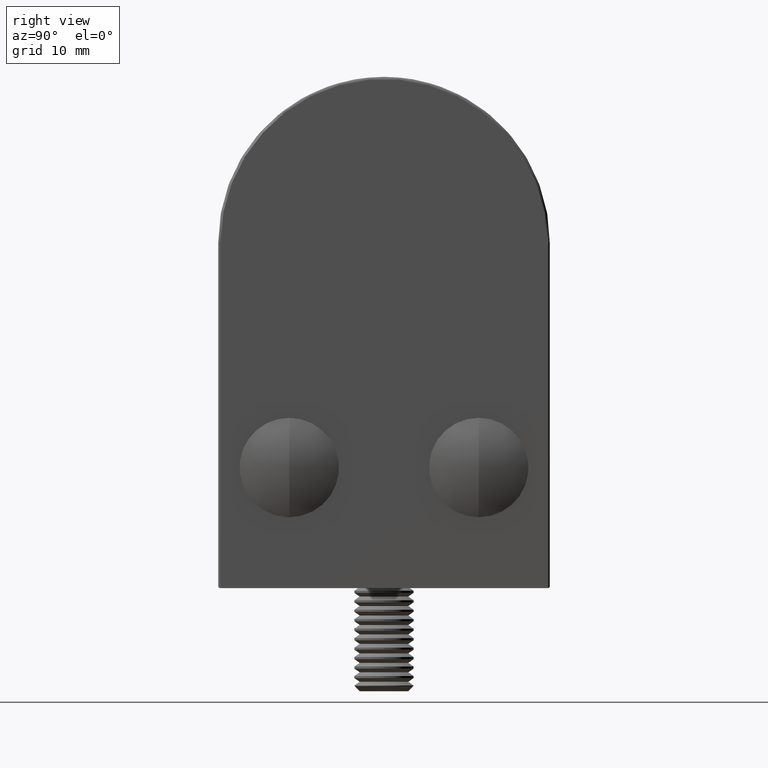
[diagram: clean part render]
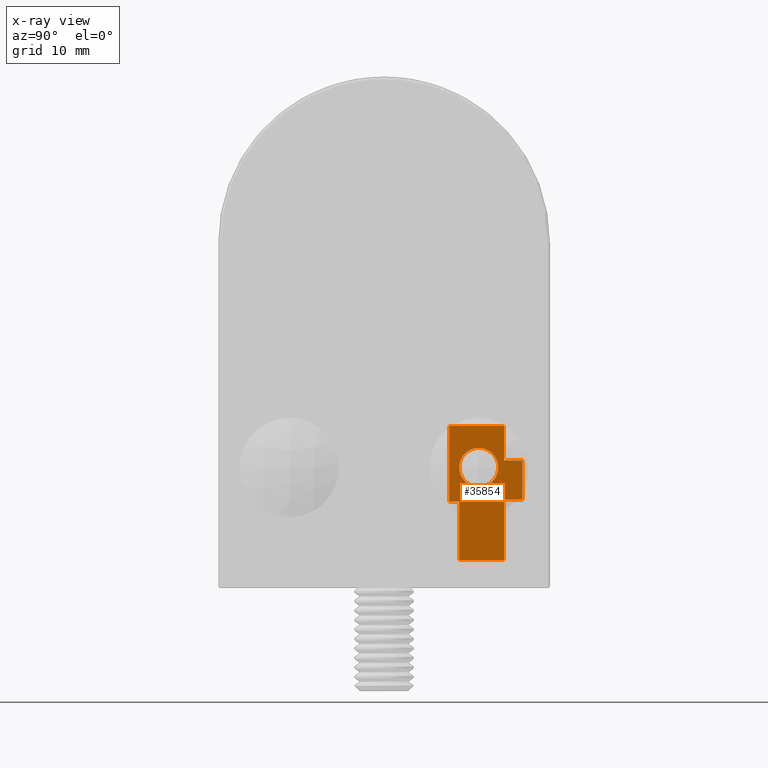
[diagram: x-ray — body ghosted, one internal face saturated and labeled with its STEP entity id]
A machine part, right view, then the same camera in x-ray: the body is ghosted and one INTERNAL B-rep face — a face not visible from any outside direction — is saturated and labeled: STEP entity #35854.
In plain terms, the highlighted planar face has unit normal (1, 0, 0).
Its self-contained STEP definition (entity closure, byte-faithful):
#1365 = VERTEX_POINT ( 'NONE', #38196 ) ;
#2745 = CARTESIAN_POINT ( 'NONE',  ( 13.29999999999999900, -13.99999999999999500, -0.8110720391324346400 ) ) ;
#4311 = CARTESIAN_POINT ( 'NONE',  ( 13.29999999999999900, 8.000000000000000000, 5.349999999999998800 ) ) ;
#4408 = ORIENTED_EDGE ( 'NONE', *, *, #43720, .F. ) ;
#4427 = EDGE_CURVE ( 'NONE', #53564, #48731, #50680, .T. ) ;
#4525 = DIRECTION ( 'NONE',  ( -0.0000000000000000000, -0.0000000000000000000, 1.000000000000000000 ) ) ;
#5306 = VERTEX_POINT ( 'NONE', #37982 ) ;
#5380 = ORIENTED_EDGE ( 'NONE', *, *, #27023, .T. ) ;
#5489 = ORIENTED_EDGE ( 'NONE', *, *, #41981, .T. ) ;
#5535 = CARTESIAN_POINT ( 'NONE',  ( 13.29999999999999900, 11.70000000000000300, 4.299999999999996300 ) ) ;
#6249 = DIRECTION ( 'NONE',  ( 0.0000000000000000000, 0.0000000000000000000, -1.000000000000000000 ) ) ;
#6376 = ORIENTED_EDGE ( 'NONE', *, *, #39985, .T. ) ;
#6615 = VERTEX_POINT ( 'NONE', #27983 ) ;
#6991 = DIRECTION ( 'NONE',  ( -0.0000000000000000000, -0.0000000000000000000, 1.000000000000000000 ) ) ;
#7411 = EDGE_LOOP ( 'NONE', ( #37344, #12944, #14843, #5489, #5380, #19915, #38906, #42386, #58615, #6376, #40244 ) ) ;
#8554 = DIRECTION ( 'NONE',  ( 0.0000000000000000000, -1.000000000000000000, 0.0000000000000000000 ) ) ;
#9765 = DIRECTION ( 'NONE',  ( 0.0000000000000000000, 0.0000000000000000000, -1.000000000000000000 ) ) ;
#10319 = LINE ( 'NONE', #21889, #54164 ) ;
#10358 = DIRECTION ( 'NONE',  ( 1.000000000000000000, -0.0000000000000000000, -0.0000000000000000000 ) ) ;
#11207 = LINE ( 'NONE', #42343, #38024 ) ;
#11582 = DIRECTION ( 'NONE',  ( 0.0000000000000000000, -1.000000000000000000, 0.0000000000000000000 ) ) ;
#11608 = VECTOR ( 'NONE', #6991, 1000.000000000000000 ) ;
#12147 = EDGE_CURVE ( 'NONE', #5306, #20780, #57287, .T. ) ;
#12753 = CARTESIAN_POINT ( 'NONE',  ( 13.29999999999999900, 10.14999999999999900, 7.599999999999997000 ) ) ;
#12944 = ORIENTED_EDGE ( 'NONE', *, *, #27893, .T. ) ;
#13829 = EDGE_CURVE ( 'NONE', #48031, #39667, #42231, .T. ) ;
#14113 = AXIS2_PLACEMENT_3D ( 'NONE', #55992, #10358, #50865 ) ;
#14166 = DIRECTION ( 'NONE',  ( 1.000000000000000000, -0.0000000000000000000, 0.0000000000000000000 ) ) ;
#14305 = CARTESIAN_POINT ( 'NONE',  ( 13.29999999999999900, 11.70000000000000300, 4.299999999999996300 ) ) ;
#14440 = VERTEX_POINT ( 'NONE', #48359 ) ;
#14543 = DIRECTION ( 'NONE',  ( 0.0000000000000000000, 0.0000000000000000000, -1.000000000000000000 ) ) ;
#14843 = ORIENTED_EDGE ( 'NONE', *, *, #4427, .T. ) ;
#17055 = CARTESIAN_POINT ( 'NONE',  ( 13.29999999999999900, 6.349999999999997900, 1.599999999999995400 ) ) ;
#17610 = VERTEX_POINT ( 'NONE', #23561 ) ;
#17677 = CARTESIAN_POINT ( 'NONE',  ( 13.29999999999999900, 6.349999999999997900, 4.099999999999993400 ) ) ;
#19822 = LINE ( 'NONE', #46881, #21943 ) ;
#19915 = ORIENTED_EDGE ( 'NONE', *, *, #12147, .T. ) ;
#20190 = CARTESIAN_POINT ( 'NONE',  ( 13.29999999999999900, 10.14999999999999900, -0.8110720391324346400 ) ) ;
#20391 = CARTESIAN_POINT ( 'NONE',  ( 13.29999999999999900, 10.14999999999999900, 10.49999999999999600 ) ) ;
#20780 = VERTEX_POINT ( 'NONE', #20391 ) ;
#21889 = CARTESIAN_POINT ( 'NONE',  ( 13.29999999999999900, 11.70000000000000300, 7.599999999999997000 ) ) ;
#21943 = VECTOR ( 'NONE', #33838, 1000.000000000000000 ) ;
#23561 = CARTESIAN_POINT ( 'NONE',  ( 13.29999999999999900, 5.499999999999999100, 10.49999999999999600 ) ) ;
#23801 = VECTOR ( 'NONE', #30529, 1000.000000000000000 ) ;
#24623 = VECTOR ( 'NONE', #8554, 1000.000000000000000 ) ;
#24874 = AXIS2_PLACEMENT_3D ( 'NONE', #49738, #14166, #14543 ) ;
#25507 = ORIENTED_EDGE ( 'NONE', *, *, #13829, .F. ) ;
#25708 = CIRCLE ( 'NONE', #14113, 1.649999999999998600 ) ;
#26127 = LINE ( 'NONE', #26871, #24623 ) ;
#26871 = CARTESIAN_POINT ( 'NONE',  ( 13.29999999999999900, 10.14999999999999900, 10.49999999999999600 ) ) ;
#27023 = EDGE_CURVE ( 'NONE', #1365, #5306, #36783, .T. ) ;
#27048 = DIRECTION ( 'NONE',  ( -0.0000000000000000000, -0.0000000000000000000, 1.000000000000000000 ) ) ;
#27354 = EDGE_LOOP ( 'NONE', ( #4408, #25507 ) ) ;
#27889 = DIRECTION ( 'NONE',  ( 1.000000000000000000, -0.0000000000000000000, -0.0000000000000000000 ) ) ;
#27893 = EDGE_CURVE ( 'NONE', #46000, #53564, #52631, .T. ) ;
#27983 = CARTESIAN_POINT ( 'NONE',  ( 13.29999999999999900, 6.349999999999997900, 4.099999999999993400 ) ) ;
#28049 = VERTEX_POINT ( 'NONE', #17055 ) ;
#28765 = VECTOR ( 'NONE', #35650, 1000.000000000000000 ) ;
#29292 = CARTESIAN_POINT ( 'NONE',  ( 13.29999999999999900, 10.14999999999999900, 4.299999999999996300 ) ) ;
#30529 = DIRECTION ( 'NONE',  ( 0.0000000000000000000, 2.538619720941671800E-015, -1.000000000000000000 ) ) ;
#31903 = DIRECTION ( 'NONE',  ( -0.0000000000000000000, 1.000000000000000000, -0.0000000000000000000 ) ) ;
#32268 = CARTESIAN_POINT ( 'NONE',  ( 13.29999999999999900, 8.000000000000000000, 6.999999999999997300 ) ) ;
#33001 = LINE ( 'NONE', #2745, #52821 ) ;
#33266 = FACE_BOUND ( 'NONE', #27354, .T. ) ;
#33382 = EDGE_CURVE ( 'NONE', #46000, #42260, #33001, .T. ) ;
#33838 = DIRECTION ( 'NONE',  ( 0.0000000000000000000, 1.000000000000000000, -4.081702296416020700E-015 ) ) ;
#35050 = VECTOR ( 'NONE', #31903, 1000.000000000000000 ) ;
#35608 = EDGE_CURVE ( 'NONE', #14440, #6615, #19822, .T. ) ;
#35650 = DIRECTION ( 'NONE',  ( 0.0000000000000000000, 2.538619720941671800E-015, -1.000000000000000000 ) ) ;
#35854 = ADVANCED_FACE ( 'NONE', ( #45289, #33266 ), #57859, .T. ) ;
#36783 = LINE ( 'NONE', #12753, #45971 ) ;
#36817 = AXIS2_PLACEMENT_3D ( 'NONE', #32268, #27889, #9765 ) ;
#37344 = ORIENTED_EDGE ( 'NONE', *, *, #33382, .F. ) ;
#37982 = CARTESIAN_POINT ( 'NONE',  ( 13.29999999999999900, 10.14999999999999900, 7.599999999999997000 ) ) ;
#38024 = VECTOR ( 'NONE', #6249, 1000.000000000000000 ) ;
#38196 = CARTESIAN_POINT ( 'NONE',  ( 13.29999999999999900, 11.70000000000000300, 7.599999999999997000 ) ) ;
#38479 = EDGE_CURVE ( 'NONE', #17610, #14440, #11207, .T. ) ;
#38906 = ORIENTED_EDGE ( 'NONE', *, *, #48596, .T. ) ;
#39667 = VERTEX_POINT ( 'NONE', #4311 ) ;
#39784 = DIRECTION ( 'NONE',  ( -0.0000000000000000000, -1.000000000000000000, -0.0000000000000000000 ) ) ;
#39985 = EDGE_CURVE ( 'NONE', #6615, #28049, #55030, .T. ) ;
#40244 = ORIENTED_EDGE ( 'NONE', *, *, #51199, .T. ) ;
#41981 = EDGE_CURVE ( 'NONE', #48731, #1365, #10319, .T. ) ;
#42231 = CIRCLE ( 'NONE', #36817, 1.649999999999998600 ) ;
#42260 = VERTEX_POINT ( 'NONE', #46145 ) ;
#42343 = CARTESIAN_POINT ( 'NONE',  ( 13.29999999999999900, 5.499999999999999100, 10.49999999999999600 ) ) ;
#42386 = ORIENTED_EDGE ( 'NONE', *, *, #38479, .T. ) ;
#43720 = EDGE_CURVE ( 'NONE', #39667, #48031, #25708, .T. ) ;
#45025 = CARTESIAN_POINT ( 'NONE',  ( 13.29999999999999900, 10.14999999999999900, 10.49999999999999600 ) ) ;
#45289 = FACE_OUTER_BOUND ( 'NONE', #7411, .T. ) ;
#45971 = VECTOR ( 'NONE', #39784, 1000.000000000000000 ) ;
#46000 = VERTEX_POINT ( 'NONE', #20190 ) ;
#46145 = CARTESIAN_POINT ( 'NONE',  ( 13.29999999999999900, 6.350000000000011200, -0.8110720391324346400 ) ) ;
#46881 = CARTESIAN_POINT ( 'NONE',  ( 13.29999999999999900, 5.499999999999999100, 4.099999999999997000 ) ) ;
#48031 = VERTEX_POINT ( 'NONE', #53460 ) ;
#48359 = CARTESIAN_POINT ( 'NONE',  ( 13.29999999999999900, 5.499999999999998200, 4.099999999999993400 ) ) ;
#48596 = EDGE_CURVE ( 'NONE', #20780, #17610, #26127, .T. ) ;
#48731 = VERTEX_POINT ( 'NONE', #5535 ) ;
#48737 = VECTOR ( 'NONE', #27048, 1000.000000000000000 ) ;
#49306 = LINE ( 'NONE', #53069, #23801 ) ;
#49738 = CARTESIAN_POINT ( 'NONE',  ( 13.29999999999999900, 0.0000000000000000000, 0.0000000000000000000 ) ) ;
#50680 = LINE ( 'NONE', #14305, #35050 ) ;
#50865 = DIRECTION ( 'NONE',  ( 0.0000000000000000000, 0.0000000000000000000, -1.000000000000000000 ) ) ;
#51199 = EDGE_CURVE ( 'NONE', #28049, #42260, #49306, .T. ) ;
#52631 = LINE ( 'NONE', #29292, #11608 ) ;
#52821 = VECTOR ( 'NONE', #11582, 1000.000000000000000 ) ;
#53069 = CARTESIAN_POINT ( 'NONE',  ( 13.29999999999999900, 6.349999999999997900, 4.099999999999993400 ) ) ;
#53460 = CARTESIAN_POINT ( 'NONE',  ( 13.29999999999999900, 8.000000000000000000, 8.649999999999996800 ) ) ;
#53564 = VERTEX_POINT ( 'NONE', #58252 ) ;
#54164 = VECTOR ( 'NONE', #4525, 1000.000000000000000 ) ;
#55030 = LINE ( 'NONE', #17677, #28765 ) ;
#55992 = CARTESIAN_POINT ( 'NONE',  ( 13.29999999999999900, 8.000000000000000000, 6.999999999999997300 ) ) ;
#57287 = LINE ( 'NONE', #45025, #48737 ) ;
#57859 = PLANE ( 'NONE',  #24874 ) ;
#58252 = CARTESIAN_POINT ( 'NONE',  ( 13.29999999999999900, 10.14999999999999900, 4.299999999999996300 ) ) ;
#58615 = ORIENTED_EDGE ( 'NONE', *, *, #35608, .T. ) ;